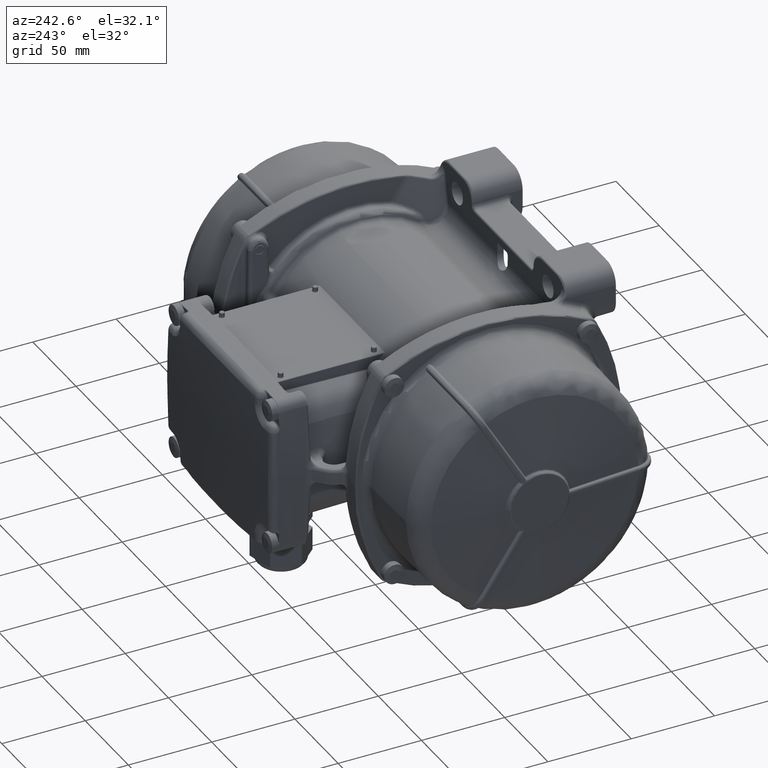
[diagram: clean part render]
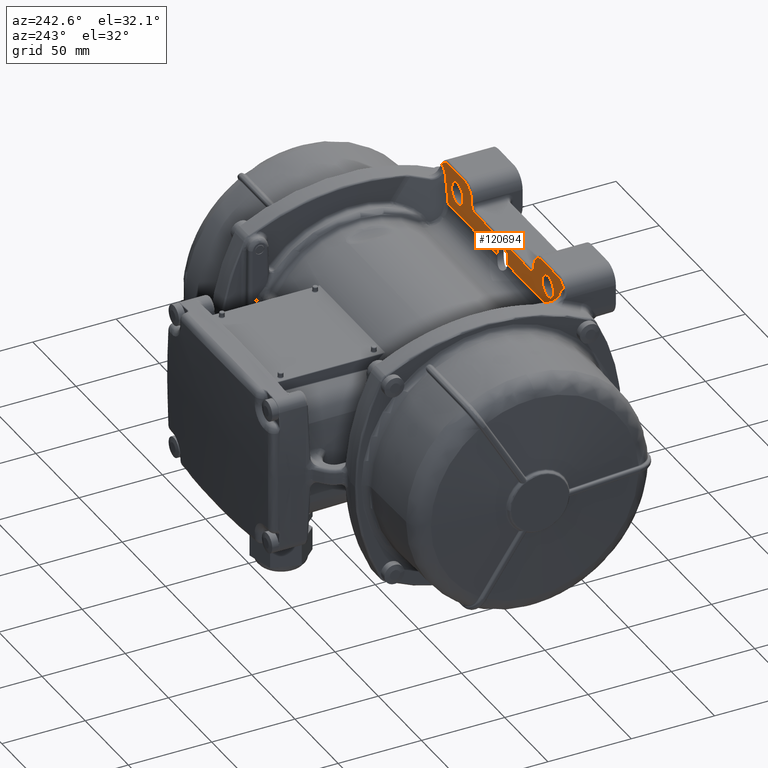
[diagram: same view with one face highlighted and labeled with its STEP entity id]
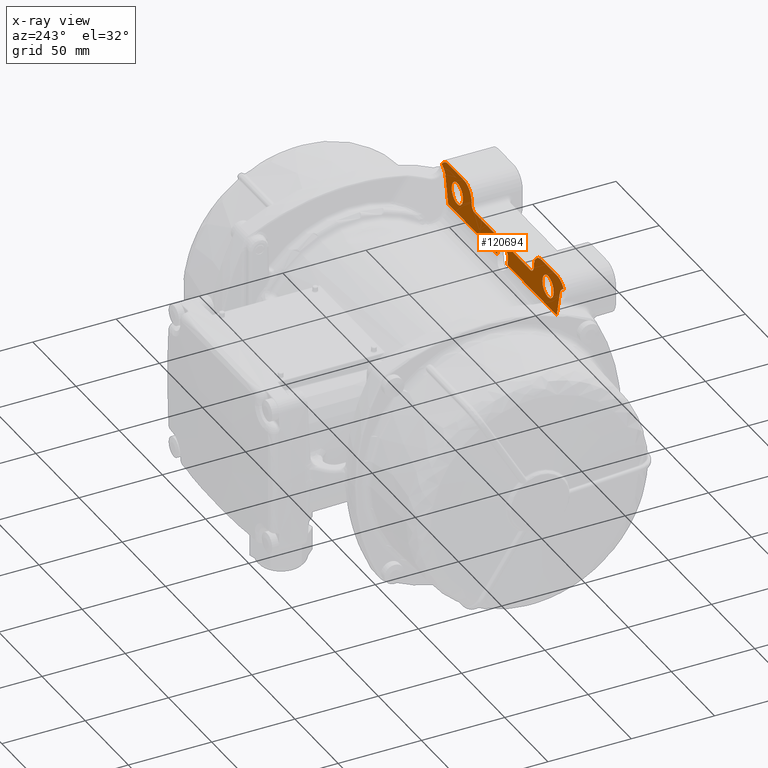
[diagram: x-ray of the same camera — body ghosted, the highlighted face saturated]
A machine part, auxiliary view. The second image highlights one B-rep face of the part: STEP entity #120694.
The next image is the same camera in x-ray: the body ghosted, the highlighted face saturated — about 0% of this face is hidden behind the body in this view.
In plain terms, the highlighted planar face has unit normal (-0, 1, 0.0087).
Its self-contained STEP definition (entity closure, byte-faithful):
#25 = CARTESIAN_POINT ( 'NONE',  ( -35.74219141796364596, -52.39611166357919814, 71.59557576535259216 ) ) ;
#185 = CARTESIAN_POINT ( 'NONE',  ( -67.51300437496439599, -52.43444178826660362, 75.98777301257689487 ) ) ;
#584 = EDGE_CURVE ( 'NONE', #59156, #31731, #58114, .T. ) ;
#629 = EDGE_CURVE ( 'NONE', #62556, #87078, #13330, .T. ) ;
#826 = CARTESIAN_POINT ( 'NONE',  ( 63.00000000000000000, -52.49134928753080231, 82.50872653549839697 ) ) ;
#1300 = CARTESIAN_POINT ( 'NONE',  ( -35.66955074502839551, -52.39450058240920072, 71.41096414883979548 ) ) ;
#1314 = CARTESIAN_POINT ( 'NONE',  ( 39.49999999999995737, -52.32546264418481741, 63.49999999999991473 ) ) ;
#1317 = CARTESIAN_POINT ( 'NONE',  ( 36.14362411237179629, -52.42678644906380470, 75.11055802703688755 ) ) ;
#1441 = CARTESIAN_POINT ( 'NONE',  ( -66.56352945394699816, -52.42177658957080411, 74.53648499040470199 ) ) ;
#1572 = LINE ( 'NONE', #21370, #115526 ) ;
#2072 = CARTESIAN_POINT ( 'NONE',  ( 69.17100087038689082, -52.44875122562469727, 77.62747212355070303 ) ) ;
#2399 = ORIENTED_EDGE ( 'NONE', *, *, #56720, .T. ) ;
#2410 = CARTESIAN_POINT ( 'NONE',  ( 65.50000000000001421, -52.43891192546470847, 76.49999999999994316 ) ) ;
#2493 = CARTESIAN_POINT ( 'NONE',  ( 36.00000000000000000, -52.40844404351869912, 73.00872653549839697 ) ) ;
#2556 = CARTESIAN_POINT ( 'NONE',  ( 39.62854222129885073, -52.47585305386430576, 80.73303403756560215 ) ) ;
#2620 = CARTESIAN_POINT ( 'NONE',  ( -90.00000000000000000, -52.45241372151829751, 78.04715258409379430 ) ) ;
#2703 = CARTESIAN_POINT ( 'NONE',  ( 67.58192563674660391, -52.43517875102779868, 76.07222058057030267 ) ) ;
#2948 = CARTESIAN_POINT ( 'NONE',  ( 68.32327232178720067, -52.47630801676520207, 80.78516762223588898 ) ) ;
#5014 = CARTESIAN_POINT ( 'NONE',  ( -69.50397608952809492, -52.46709727372950027, 79.72972101108770460 ) ) ;
#5635 = CARTESIAN_POINT ( 'NONE',  ( -67.13422589226860282, -52.48265987602319882, 81.51301860042420344 ) ) ;
#5817 = CARTESIAN_POINT ( 'NONE',  ( 35.66736229531954905, -52.39450414648650423, 71.41137255164460385 ) ) ;
#5920 = CARTESIAN_POINT ( 'NONE',  ( -6.000000000000008882, -52.33313076537709918, 64.37867965644041135 ) ) ;
#6078 = CARTESIAN_POINT ( 'NONE',  ( 73.00000000000000000, -52.33855294587100104, 65.00000000000000000 ) ) ;
#6461 = CARTESIAN_POINT ( 'NONE',  ( -35.86250208958059460, -52.39924217463660483, 71.95429680163280750 ) ) ;
#6842 = CARTESIAN_POINT ( 'NONE',  ( -42.65123068770429882, -52.48870291380980291, 82.20548214306620594 ) ) ;
#7062 = CARTESIAN_POINT ( 'NONE',  ( 33.26436218126595179, -52.37531731372749988, 69.21277928553570291 ) ) ;
#7466 = CARTESIAN_POINT ( 'NONE',  ( -36.16376625722099902, -52.42772556374910664, 75.21816991114479833 ) ) ;
#8321 = ORIENTED_EDGE ( 'NONE', *, *, #107964, .T. ) ;
#8570 = B_SPLINE_CURVE_WITH_KNOTS ( 'NONE', 3,
 ( #48539, #40190, #58821, #98011, #106368, #77476, #10286, #1317, #18601, #57523, #49192, #88336, #79360, #30662, #105751, #96717, #8979, #47926, #32538, #108920, #33147, #70984, #101196, #50451, #121102, #2556, #22350, #61958, #119828, #79986, #52939, #81866, #71607, #12780, #110798, #80623, #23633, #81246, #99290, #121729, #22986, #101824, #69722, #99923, #62610, #21105 ),
 .UNSPECIFIED., .F., .F.,
 ( 4, 1, 1, 1, 2, 2, 1, 1, 1, 2, 2, 1, 1, 2, 2, 2, 1, 1, 2, 2, 1, 1, 1, 2, 2, 1, 1, 1, 2, 2, 4 ),
 ( 0.000000000000000000, 0.06250000000004569956, 0.09375000000006999956, 0.1093750000000821981, 0.1171875000000869999, 0.1250000000000913991, 0.1875000000001225131, 0.2187500000001385003, 0.2343750000001444955, 0.2421875000001464939, 0.2500000000001479927, 0.3125000000001414979, 0.3437500000001380007, 0.3593750000001350031, 0.3750000000001315059, 0.5000000000001030287, 0.5625000000000880407, 0.5937500000000800471, 0.6093750000000780487, 0.6250000000000750511, 0.6875000000000609512, 0.7187500000000529576, 0.7343750000000489608, 0.7421875000000469624, 0.7500000000000459632, 0.8125000000000299760, 0.8437500000000229816, 0.8593750000000199840, 0.8671875000000179856, 0.8750000000000169864, 1.000000000000000000 ),
 .UNSPECIFIED. ) ;
#8733 = CARTESIAN_POINT ( 'NONE',  ( -36.00000000000000000, -52.41761468992400097, 74.05957852789680373 ) ) ;
#8827 = VECTOR ( 'NONE', #95307, 1000.000000000000114 ) ;
#8936 = B_SPLINE_CURVE_WITH_KNOTS ( 'NONE', 3,
 ( #103811, #16037, #94208, #6461, #70334, #21086, #25, #60672, #1300, #49173, #39530, #69707, #60053, #97352, #79970, #119164, #11516, #78722, #97996, #19843, #48523, #79342, #67783, #118545, #40170, #30645, #98623, #30021 ),
 .UNSPECIFIED., .F., .F.,
 ( 4, 1, 1, 1, 2, 2, 2, 2, 2, 1, 2, 2, 1, 1, 2, 2, 4 ),
 ( 0.000000000000000000, 0.1249999999999810013, 0.1874999999999679978, 0.2187499999999615030, 0.2343749999999620026, 0.2499999999999625022, 0.3124999999999669709, 0.3749999999999714673, 0.4999999999999729661, 0.5624999999999780176, 0.5937499999999790168, 0.6249999999999800160, 0.6874999999999830136, 0.7187499999999830136, 0.7343749999999830136, 0.7499999999999830136, 1.000000000000000000 ),
 .UNSPECIFIED. ) ;
#8979 = CARTESIAN_POINT ( 'NONE',  ( 36.93193603513039847, -52.44779082679600180, 77.51742131817809423 ) ) ;
#9057 = FACE_OUTER_BOUND ( 'NONE', #11469, .T. ) ;
#9297 = EDGE_CURVE ( 'NONE', #74327, #55427, #89322, .T. ) ;
#9422 = ORIENTED_EDGE ( 'NONE', *, *, #94746, .T. ) ;
#9778 = CARTESIAN_POINT ( 'NONE',  ( -67.53965655976689675, -52.43472886301799463, 76.02066852082219839 ) ) ;
#10286 = CARTESIAN_POINT ( 'NONE',  ( 36.13792635077714976, -52.42650821094759550, 75.07867509689289420 ) ) ;
#10706 = ORIENTED_EDGE ( 'NONE', *, *, #10849, .T. ) ;
#10849 = EDGE_CURVE ( 'NONE', #109206, #68739, #109591, .T. ) ;
#10946 = CARTESIAN_POINT ( 'NONE',  ( -90.00000000000000000, -52.45241372157460091, 78.04715259054739818 ) ) ;
#11066 = CARTESIAN_POINT ( 'NONE',  ( -68.23497762478530149, -52.44139680993029629, 76.78473955663730521 ) ) ;
#11077 = CARTESIAN_POINT ( 'NONE',  ( 68.59931145143309550, -52.44439647050750608, 77.12846661303110807 ) ) ;
#11330 = EDGE_CURVE ( 'NONE', #45137, #48163, #96190, .T. ) ;
#11469 = EDGE_LOOP ( 'NONE', ( #111977, #71639, #87580, #8321, #2399, #23181, #48962, #52365, #92902, #126263, #67524, #117303, #82454, #25935, #120791, #23824, #9422, #110651, #10706, #46489, #80227, #76010, #30725, #33579, #105143, #71362 ) ) ;
#11516 = CARTESIAN_POINT ( 'NONE',  ( -34.41473829760315084, -52.38060820441990018, 69.81905530795231130 ) ) ;
#11793 = CARTESIAN_POINT ( 'NONE',  ( -66.22881713375690538, -52.41207472889580288, 73.42476187191149961 ) ) ;
#12291 = CARTESIAN_POINT ( 'NONE',  ( -67.52897761058099491, -52.43461405109889739, 76.00751237799569537 ) ) ;
#12303 = CARTESIAN_POINT ( 'NONE',  ( 67.56835842336060693, -52.43503499546189772, 76.05574782433130565 ) ) ;
#12538 = CARTESIAN_POINT ( 'NONE',  ( 63.00000000000000000, -52.49134928753080231, 82.50872653549839697 ) ) ;
#12555 = CARTESIAN_POINT ( 'NONE',  ( 73.00000000000000000, -52.27461985331920147, 57.67399322588629929 ) ) ;
#12780 = CARTESIAN_POINT ( 'NONE',  ( 41.54616028714610110, -52.48533628981460453, 81.81970524395968880 ) ) ;
#13330 =( BOUNDED_CURVE ( )  B_SPLINE_CURVE ( 3, ( #69718, #50448, #110794, #21102 ),
 .UNSPECIFIED., .F., .F. ) 
 B_SPLINE_CURVE_WITH_KNOTS ( ( 4, 4 ),
 ( 0.000000000000000000, 3.141592653589795336 ),
 .UNSPECIFIED. ) 
 CURVE ( )  GEOMETRIC_REPRESENTATION_ITEM ( )  RATIONAL_B_SPLINE_CURVE ( ( 1.000000000000000000, 0.3333333333333335369, 0.3333333333333335369, 1.000000000000000000 ) ) 
 REPRESENTATION_ITEM ( '' )  );
#14159 = CARTESIAN_POINT ( 'NONE',  ( 35.52352459291344644, -52.39184679412279877, 71.10687013137140866 ) ) ;
#14190 = CARTESIAN_POINT ( 'NONE',  ( 66.42267834732039944, -52.41991503173639444, 74.32317159101958737 ) ) ;
#14783 = CARTESIAN_POINT ( 'NONE',  ( 34.63360700925499458, -52.38206145051620410, 69.98558081643260209 ) ) ;
#14807 = CARTESIAN_POINT ( 'NONE',  ( 66.22881717715910099, -52.41207472881409757, 73.42476186254670267 ) ) ;
#14944 = CARTESIAN_POINT ( 'NONE',  ( 5.997044128865260504, -52.27556819265799959, 57.78255508540340202 ) ) ;
#15974 = CARTESIAN_POINT ( 'NONE',  ( 36.00000000000000000, -52.41280747741399892, 73.50872653549839697 ) ) ;
#16030 = CARTESIAN_POINT ( 'NONE',  ( 36.00000000000000000, -52.40400170385370160, 72.49968482988050766 ) ) ;
#16037 = CARTESIAN_POINT ( 'NONE',  ( -36.00000000000000000, -52.40622607204169725, 72.75457217793119469 ) ) ;
#16477 = EDGE_CURVE ( 'NONE', #25173, #87387, #66704, .T. ) ;
#16615 = CARTESIAN_POINT ( 'NONE',  ( 4.500000000000000000, -52.33855294587100104, 65.00000000000000000 ) ) ;
#18356 = CARTESIAN_POINT ( 'NONE',  ( -36.68902129096849762, -52.44294867994909737, 76.96256624726159146 ) ) ;
#18601 = CARTESIAN_POINT ( 'NONE',  ( 36.20327225928320303, -52.42960107181369978, 75.43308184857410481 ) ) ;
#18905 = DIRECTION ( 'NONE',  ( 1.000000000000000000, 0.000000000000000000, 0.000000000000000000 ) ) ;
#19074 = EDGE_CURVE ( 'NONE', #19427, #56080, #33787, .T. ) ;
#19299 = DIRECTION ( 'NONE',  ( 1.000000000000000000, 0.000000000000000000, 0.000000000000000000 ) ) ;
#19427 = VERTEX_POINT ( 'NONE', #46183 ) ;
#19843 = CARTESIAN_POINT ( 'NONE',  ( -34.07602468233614701, -52.37858262320850145, 69.58694669121460663 ) ) ;
#20363 = VERTEX_POINT ( 'NONE', #83900 ) ;
#20634 = CARTESIAN_POINT ( 'NONE',  ( 67.67872767185910732, -52.43618598547129750, 76.18763821581710260 ) ) ;
#20645 = VECTOR ( 'NONE', #36715, 1000.000000000000227 ) ;
#20871 = CARTESIAN_POINT ( 'NONE',  ( 64.95175717671459381, -52.48948859469710015, 82.29551225538220649 ) ) ;
#20950 = EDGE_CURVE ( 'NONE', #80713, #90274, #102930, .T. ) ;
#21086 = CARTESIAN_POINT ( 'NONE',  ( -35.76413257388159650, -52.39663033040129392, 71.65500909637290761 ) ) ;
#21102 = CARTESIAN_POINT ( 'NONE',  ( -52.50000000000000000, -52.43891192546470137, 76.50000000000000000 ) ) ;
#21105 = CARTESIAN_POINT ( 'NONE',  ( 45.00000000000000000, -52.49134928753080231, 82.50872653549839697 ) ) ;
#21258 = CARTESIAN_POINT ( 'NONE',  ( 68.58438247941860766, -52.44427740431690665, 77.11482297896360194 ) ) ;
#21370 = CARTESIAN_POINT ( 'NONE',  ( 66.22881719162650427, -52.41207472878679852, 73.42476185942510369 ) ) ;
#21878 = CARTESIAN_POINT ( 'NONE',  ( 68.85425544990009428, -52.44638354309849859, 77.35616257894319858 ) ) ;
#22350 = CARTESIAN_POINT ( 'NONE',  ( 39.81801219909559819, -52.47702757707580190, 80.86762106691119811 ) ) ;
#22399 = CARTESIAN_POINT ( 'NONE',  ( 52.50000000000000000, -52.43891192546470137, 76.50000000000000000 ) ) ;
#22440 = VERTEX_POINT ( 'NONE', #38435 ) ;
#22523 = EDGE_CURVE ( 'NONE', #81490, #33100, #97725, .T. ) ;
#22986 = CARTESIAN_POINT ( 'NONE',  ( 43.21897199653029986, -52.48979664579810134, 82.33081141521660129 ) ) ;
#23181 = ORIENTED_EDGE ( 'NONE', *, *, #22523, .T. ) ;
#23383 = CARTESIAN_POINT ( 'NONE',  ( 65.18599882213280239, -52.48899841217650675, 82.23934290201829356 ) ) ;
#23530 = CARTESIAN_POINT ( 'NONE',  ( -43.83718246299655164, -52.49070733284920465, 82.43516581508390573 ) ) ;
#23633 = CARTESIAN_POINT ( 'NONE',  ( 41.95818393053240669, -52.48677146362960144, 81.98415987412609240 ) ) ;
#23824 = ORIENTED_EDGE ( 'NONE', *, *, #97067, .T. ) ;
#24010 = CARTESIAN_POINT ( 'NONE',  ( 70.77191668398809554, -52.45241372157460091, 78.04715259054739818 ) ) ;
#24354 = CARTESIAN_POINT ( 'NONE',  ( 33.72015918122835387, -52.37690672652909996, 69.39490795295870385 ) ) ;
#24943 = EDGE_CURVE ( 'NONE', #93215, #25173, #53175, .T. ) ;
#25130 = CARTESIAN_POINT ( 'NONE',  ( 5.991136752172499413, -52.27461985331920147, 57.67399322588629929 ) ) ;
#25173 = VERTEX_POINT ( 'NONE', #117369 ) ;
#25237 = VECTOR ( 'NONE', #70423, 1000.000000000000000 ) ;
#25709 = EDGE_CURVE ( 'NONE', #79936, #116979, #114523, .T. ) ;
#25935 = ORIENTED_EDGE ( 'NONE', *, *, #109659, .T. ) ;
#26020 = CARTESIAN_POINT ( 'NONE',  ( -44.31390111628629569, -52.49118538420780311, 82.48994507496699669 ) ) ;
#26060 = CARTESIAN_POINT ( 'NONE',  ( -65.47231466107410824, -52.48832911787740585, 82.16264937175260741 ) ) ;
#26239 = CARTESIAN_POINT ( 'NONE',  ( 32.62881748415659899, -52.37384293646260147, 69.04383238496720310 ) ) ;
#26270 = CARTESIAN_POINT ( 'NONE',  ( -52.50000000000000000, -52.32546264418489557, 63.50000000000000000 ) ) ;
#26876 = CARTESIAN_POINT ( 'NONE',  ( 33.44103295018509669, -52.37587926668140881, 69.27717271595490445 ) ) ;
#26965 = DIRECTION ( 'NONE',  ( 0.000000000000000000, 0.008726535498370600538, -0.9999619230641713097 ) ) ;
#27191 = CARTESIAN_POINT ( 'NONE',  ( -62.83007482337499283, -52.27461985331920147, 57.67399322588629929 ) ) ;
#27268 = CARTESIAN_POINT ( 'NONE',  ( -36.83995410223180045, -52.44598674896020185, 77.31069447425031171 ) ) ;
#27672 = CARTESIAN_POINT ( 'NONE',  ( -66.22881713375690538, -52.41207472889580288, 73.42476187191149961 ) ) ;
#28041 = CARTESIAN_POINT ( 'NONE',  ( -62.83007482342309657, -52.27461985331909489, 57.67399322587590405 ) ) ;
#28176 = LINE ( 'NONE', #79371, #107672 ) ;
#28373 = LINE ( 'NONE', #2620, #25237 ) ;
#28530 = CARTESIAN_POINT ( 'NONE',  ( -36.25521376075444380, -52.43145657224420120, 75.64570113822450992 ) ) ;
#29030 = CARTESIAN_POINT ( 'NONE',  ( -36.00000000000000000, -52.50000000000000000, 83.50000000000000000 ) ) ;
#29139 = CARTESIAN_POINT ( 'NONE',  ( -38.41659191650744276, -52.46643028589129898, 79.65329177505169866 ) ) ;
#30021 = CARTESIAN_POINT ( 'NONE',  ( -32.00000000000000000, -52.37353657235559723, 69.00872653549839697 ) ) ;
#30041 =( BOUNDED_CURVE ( )  B_SPLINE_CURVE ( 3, ( #74942, #53724, #114104, #26270 ),
 .UNSPECIFIED., .F., .F. ) 
 B_SPLINE_CURVE_WITH_KNOTS ( ( 4, 4 ),
 ( 3.141592653589795336, 6.283185307179590673 ),
 .UNSPECIFIED. ) 
 CURVE ( )  GEOMETRIC_REPRESENTATION_ITEM ( )  RATIONAL_B_SPLINE_CURVE ( ( 1.000000000000000000, 0.3333333333333335369, 0.3333333333333335369, 1.000000000000000000 ) ) 
 REPRESENTATION_ITEM ( '' )  );
#30190 = CARTESIAN_POINT ( 'NONE',  ( 68.37002813266148848, -52.44255993236959768, 76.91802018689529064 ) ) ;
#30645 = CARTESIAN_POINT ( 'NONE',  ( -32.99983465723275344, -52.37435354330759907, 69.10234213408190840 ) ) ;
#30662 = CARTESIAN_POINT ( 'NONE',  ( 36.60523556357129848, -52.44112500346459171, 76.75359362063140622 ) ) ;
#30725 = ORIENTED_EDGE ( 'NONE', *, *, #69783, .T. ) ;
#31731 = VERTEX_POINT ( 'NONE', #74337 ) ;
#32309 = CARTESIAN_POINT ( 'NONE',  ( 68.86008412919559873, -52.47246537700669933, 80.34484471937790317 ) ) ;
#32538 = CARTESIAN_POINT ( 'NONE',  ( 37.30473621667745476, -52.45354331167420270, 78.17659079526049482 ) ) ;
#33012 = CARTESIAN_POINT ( 'NONE',  ( 52.50000000000000000, -52.32546264418489557, 63.50000000000000000 ) ) ;
#33100 = VERTEX_POINT ( 'NONE', #73324 ) ;
#33147 = CARTESIAN_POINT ( 'NONE',  ( 37.42459604317075161, -52.45521961893160068, 78.36867658108820933 ) ) ;
#33533 = LINE ( 'NONE', #6078, #97551 ) ;
#33579 = ORIENTED_EDGE ( 'NONE', *, *, #24943, .T. ) ;
#33698 = CARTESIAN_POINT ( 'NONE',  ( -43.49782040334589794, -52.49024806207960125, 82.38253859755340613 ) ) ;
#33787 = LINE ( 'NONE', #63236, #96734 ) ;
#34360 = CARTESIAN_POINT ( 'NONE',  ( -64.53261775609250606, -52.49049563633830218, 82.41090779766729213 ) ) ;
#34532 = CARTESIAN_POINT ( 'NONE',  ( 35.27085493286170248, -52.38834152105519593, 70.70520562222060335 ) ) ;
#34848 = LINE ( 'NONE', #27191, #20645 ) ;
#35117 = CARTESIAN_POINT ( 'NONE',  ( -6.000000000000000000, -52.27651653199689719, 57.89127753479069582 ) ) ;
#35192 = B_SPLINE_CURVE_WITH_KNOTS ( 'NONE', 3,
 ( #59592, #89762, #2072, #21878, #100072, #51842, #11077, #21258, #49975, #69244, #30190, #91037, #108447, #20634, #40957, #2703, #12303, #90400, #79507, #122512, #14190, #14807 ),
 .UNSPECIFIED., .F., .F.,
 ( 4, 1, 1, 1, 1, 1, 2, 2, 1, 1, 1, 1, 1, 2, 2, 4 ),
 ( 0.000000000000000000, 0.1249999999998206018, 0.1874999999997259970, 0.2187499999996785072, 0.2343749999996604938, 0.2421874999996515010, 0.2460937499996495026, 0.2499999999996480038, 0.3749999999995459743, 0.4374999999994929611, 0.4687499999994639843, 0.4843749999994489963, 0.4921874999994419464, 0.4960937499994440003, 0.4999999999994449995, 1.000000000000000000 ),
 .UNSPECIFIED. ) ;
#35395 = DIRECTION ( 'NONE',  ( -1.000000000000000000, 0.000000000000000000, 0.000000000000000000 ) ) ;
#35590 = CARTESIAN_POINT ( 'NONE',  ( -66.59917956899629132, -52.48494533621570213, 81.77490639880520007 ) ) ;
#35766 = CARTESIAN_POINT ( 'NONE',  ( 35.70745125442674350, -52.39533704864429353, 71.50681368559159523 ) ) ;
#35872 = CARTESIAN_POINT ( 'NONE',  ( -6.000000000000000000, -52.32546264418489557, 63.50000000000000000 ) ) ;
#36175 = CARTESIAN_POINT ( 'NONE',  ( -40.52716846999135214, -52.48098610877870129, 81.32122387124370277 ) ) ;
#36373 = CARTESIAN_POINT ( 'NONE',  ( -5.997044128865260504, -52.27556819265799959, 57.78255508540340202 ) ) ;
#36387 = CARTESIAN_POINT ( 'NONE',  ( 33.05442973659035033, -52.37473649844140766, 69.14622444591779526 ) ) ;
#36641 = B_SPLINE_CURVE_WITH_KNOTS ( 'NONE', 3,
 ( #104433, #35117, #36373, #74890 ),
 .UNSPECIFIED., .F., .F.,
 ( 4, 4 ),
 ( 0.000000000000000000, 1.000000000000000000 ),
 .UNSPECIFIED. ) ;
#36715 = DIRECTION ( 'NONE',  ( -0.2109201995661595108, -0.008530217103958478639, 0.9774660632529043047 ) ) ;
#36833 = CARTESIAN_POINT ( 'NONE',  ( -69.40431130632069312, -52.46799219706839779, 79.83226906846199711 ) ) ;
#37241 = B_SPLINE_CURVE_WITH_KNOTS ( 'NONE', 3,
 ( #83687, #113890, #123550, #63187, #102389, #5014, #124851, #36833, #112003, #43923, #5635, #35590, #74719, #83066, #26060, #104265, #122306, #34360, #63807, #103005 ),
 .UNSPECIFIED., .F., .F.,
 ( 4, 1, 1, 1, 2, 2, 2, 1, 1, 1, 2, 2, 4 ),
 ( 0.000000000000000000, 0.1249999999999926031, 0.1874999999999899802, 0.2187499999999890088, 0.2343749999999900080, 0.2499999999999910072, 0.4999999999999649725, 0.6249999999999530376, 0.6874999999999450440, 0.7187499999999420464, 0.7343749999999430456, 0.7499999999999440448, 1.000000000000000000 ),
 .UNSPECIFIED. ) ;
#37418 = CARTESIAN_POINT ( 'NONE',  ( -36.19977270372755385, -52.42928566842740423, 75.39694020029939736 ) ) ;
#37909 = EDGE_CURVE ( 'NONE', #49177, #45137, #42298, .T. ) ;
#37972 = LINE ( 'NONE', #106046, #59326 ) ;
#38053 = CARTESIAN_POINT ( 'NONE',  ( -36.73296867453954917, -52.44386629843990022, 77.06771491145789810 ) ) ;
#38435 = CARTESIAN_POINT ( 'NONE',  ( -70.77191668398809554, -52.45241372157460091, 78.04715259054739818 ) ) ;
#38660 = CARTESIAN_POINT ( 'NONE',  ( -36.64532261916735223, -52.44201396446300123, 76.85545846146190740 ) ) ;
#39134 = EDGE_CURVE ( 'NONE', #87506, #109206, #80636, .T. ) ;
#39212 = VECTOR ( 'NONE', #26965, 1000.000000000000114 ) ;
#39530 = CARTESIAN_POINT ( 'NONE',  ( -35.49009486567814520, -52.39134829073950073, 71.04974730159548812 ) ) ;
#39697 = CARTESIAN_POINT ( 'NONE',  ( -68.52178524193880094, -52.44377876409090078, 77.05768446856799869 ) ) ;
#40170 = CARTESIAN_POINT ( 'NONE',  ( -33.50191284956114401, -52.37608960658059942, 69.30127528107169610 ) ) ;
#40190 = CARTESIAN_POINT ( 'NONE',  ( 36.00000000000000000, -52.41520806643909225, 73.78380679139019094 ) ) ;
#40329 = CARTESIAN_POINT ( 'NONE',  ( -67.69382509968130535, -52.43637638188609884, 76.20945548398489677 ) ) ;
#40453 = CARTESIAN_POINT ( 'NONE',  ( 69.69697793442439604, -52.45241045460070239, 78.04715261980310004 ) ) ;
#40944 = CARTESIAN_POINT ( 'NONE',  ( -68.55927083360769814, -52.44408062287169514, 77.09227405879299511 ) ) ;
#40957 = CARTESIAN_POINT ( 'NONE',  ( 67.61384411675359729, -52.43551431575029653, 76.11067248916239691 ) ) ;
#42298 =( BOUNDED_CURVE ( )  B_SPLINE_CURVE ( 3, ( #85848, #76936, #5920, #35872 ),
 .UNSPECIFIED., .F., .F. ) 
 B_SPLINE_CURVE_WITH_KNOTS ( ( 4, 4 ),
 ( -2.664535259100375303E-15, 1.570796326794895004 ),
 .UNSPECIFIED. ) 
 CURVE ( )  GEOMETRIC_REPRESENTATION_ITEM ( )  RATIONAL_B_SPLINE_CURVE ( ( 1.000000000000000000, 0.8047378541243639383, 0.8047378541243639383, 1.000000000000000000 ) ) 
 REPRESENTATION_ITEM ( '' )  );
#43087 = CARTESIAN_POINT ( 'NONE',  ( 65.23117249040758736, -52.48889869005009956, 82.22791587817130221 ) ) ;
#43192 = CARTESIAN_POINT ( 'NONE',  ( 73.00000000000000000, -52.27461985331920147, 57.67399322588830302 ) ) ;
#43923 = CARTESIAN_POINT ( 'NONE',  ( -68.17378555790440942, -52.47745049447620147, 80.91608260093829585 ) ) ;
#44361 = CARTESIAN_POINT ( 'NONE',  ( 70.38222410321810685, -52.45823748073380699, 78.71448929128379746 ) ) ;
#44541 = CARTESIAN_POINT ( 'NONE',  ( 36.00000000000000000, -52.27461985331920147, 57.67399322588629929 ) ) ;
#44712 = CARTESIAN_POINT ( 'NONE',  ( 36.00000000000000000, -52.40844404351869912, 73.00872653549839697 ) ) ;
#45137 = VERTEX_POINT ( 'NONE', #62455 ) ;
#45776 = CARTESIAN_POINT ( 'NONE',  ( -40.99130521350114975, -52.48321640494559404, 81.57679049839600793 ) ) ;
#45995 = CARTESIAN_POINT ( 'NONE',  ( 35.18967123170234856, -52.38737094169069763, 70.59398824299910302 ) ) ;
#46093 = CARTESIAN_POINT ( 'NONE',  ( -6.000000000000000000, -52.50000000000000000, 83.50000000000000000 ) ) ;
#46183 = CARTESIAN_POINT ( 'NONE',  ( -32.00000000000000000, -52.37353657235559723, 69.00872653549839697 ) ) ;
#46408 = CARTESIAN_POINT ( 'NONE',  ( -41.75513291432769591, -52.48606747678400808, 81.90349097177490023 ) ) ;
#46489 = ORIENTED_EDGE ( 'NONE', *, *, #66558, .T. ) ;
#46661 =( BOUNDED_CURVE ( )  B_SPLINE_CURVE ( 3, ( #33012, #101044, #2410, #63097 ),
 .UNSPECIFIED., .F., .F. ) 
 B_SPLINE_CURVE_WITH_KNOTS ( ( 4, 4 ),
 ( 0.000000000000000000, 3.141592653589795336 ),
 .UNSPECIFIED. ) 
 CURVE ( )  GEOMETRIC_REPRESENTATION_ITEM ( )  RATIONAL_B_SPLINE_CURVE ( ( 1.000000000000000000, 0.3333333333333335369, 0.3333333333333335369, 1.000000000000000000 ) ) 
 REPRESENTATION_ITEM ( '' )  );
#47283 = CARTESIAN_POINT ( 'NONE',  ( 39.49999999999995737, -52.43891192546470847, 76.49999999999994316 ) ) ;
#47667 = CARTESIAN_POINT ( 'NONE',  ( -41.82329376997439851, -52.48629464533009781, 81.92952190883229946 ) ) ;
#47893 = VECTOR ( 'NONE', #81113, 1000.000000000000000 ) ;
#47926 = CARTESIAN_POINT ( 'NONE',  ( 37.18750266277584871, -52.45184128680170232, 77.98155806264291812 ) ) ;
#48163 = VERTEX_POINT ( 'NONE', #65693 ) ;
#48294 = CARTESIAN_POINT ( 'NONE',  ( -37.77569249579909894, -52.45968347926950059, 78.88018431157500743 ) ) ;
#48523 = CARTESIAN_POINT ( 'NONE',  ( -33.90185641202104705, -52.37769471027510093, 69.48520194673560013 ) ) ;
#48539 = CARTESIAN_POINT ( 'NONE',  ( 36.00000000000000000, -52.41280747741399892, 73.50872653549839697 ) ) ;
#48962 = ORIENTED_EDGE ( 'NONE', *, *, #60142, .T. ) ;
#49173 = CARTESIAN_POINT ( 'NONE',  ( -35.61381858546985058, -52.39343244181530679, 71.28856736002649086 ) ) ;
#49177 = VERTEX_POINT ( 'NONE', #91316 ) ;
#49192 = CARTESIAN_POINT ( 'NONE',  ( 36.45565076701009843, -52.43754018763109315, 76.34281441331719975 ) ) ;
#49329 = CARTESIAN_POINT ( 'NONE',  ( -69.25423661371890205, -52.44938977394750168, 77.70064251390000720 ) ) ;
#49975 = CARTESIAN_POINT ( 'NONE',  ( 68.57446004670750028, -52.44419814202589691, 77.10574042004189721 ) ) ;
#50396 = CARTESIAN_POINT ( 'NONE',  ( -52.50000000000000000, -52.32546264418489557, 63.50000000000000000 ) ) ;
#50437 = EDGE_LOOP ( 'NONE', ( #56770, #53798 ) ) ;
#50448 = CARTESIAN_POINT ( 'NONE',  ( -39.49999999999995737, -52.32546264418481741, 63.49999999999991473 ) ) ;
#50451 = CARTESIAN_POINT ( 'NONE',  ( 38.85543475844714578, -52.47026000935709789, 80.09213461736550244 ) ) ;
#50888 = CARTESIAN_POINT ( 'NONE',  ( -52.50000000000000000, -52.43891192546470137, 76.50000000000000000 ) ) ;
#51198 = CARTESIAN_POINT ( 'NONE',  ( -68.87662837954300699, -52.44662512311790437, 77.38384490725329101 ) ) ;
#51439 = CARTESIAN_POINT ( 'NONE',  ( 65.09235957950630791, -52.48919848667470234, 82.26226916869738659 ) ) ;
#51842 = CARTESIAN_POINT ( 'NONE',  ( 68.63446298010219948, -52.44467550089940033, 77.16044032898308558 ) ) ;
#51972 = CARTESIAN_POINT ( 'NONE',  ( 4.500000000000000000, -52.33855294587100104, 65.00000000000000000 ) ) ;
#52365 = ORIENTED_EDGE ( 'NONE', *, *, #62671, .T. ) ;
#52624 = EDGE_CURVE ( 'NONE', #20363, #80713, #1572, .T. ) ;
#52939 = CARTESIAN_POINT ( 'NONE',  ( 40.72154221284944953, -52.48199678107099686, 81.43703544494289304 ) ) ;
#53059 = CARTESIAN_POINT ( 'NONE',  ( 35.62656087315635034, -52.39369560870260045, 71.31872329840480518 ) ) ;
#53175 = LINE ( 'NONE', #62202, #126913 ) ;
#53696 = CARTESIAN_POINT ( 'NONE',  ( 34.92583718249154856, -52.38461037565970457, 70.27765870791169789 ) ) ;
#53724 = CARTESIAN_POINT ( 'NONE',  ( -65.50000000000001421, -52.43891192546470847, 76.49999999999994316 ) ) ;
#53798 = ORIENTED_EDGE ( 'NONE', *, *, #629, .T. ) ;
#55427 = VERTEX_POINT ( 'NONE', #99865 ) ;
#55946 = EDGE_CURVE ( 'NONE', #88393, #55427, #77735, .T. ) ;
#56080 = VERTEX_POINT ( 'NONE', #75689 ) ;
#56163 = EDGE_CURVE ( 'NONE', #88393, #19427, #8936, .T. ) ;
#56321 = EDGE_LOOP ( 'NONE', ( #123153, #62386 ) ) ;
#56720 = EDGE_CURVE ( 'NONE', #58536, #81490, #34848, .T. ) ;
#56770 = ORIENTED_EDGE ( 'NONE', *, *, #110674, .T. ) ;
#57281 = CARTESIAN_POINT ( 'NONE',  ( -36.17791511992864883, -52.42835027332120745, 75.28975453774241089 ) ) ;
#57523 = CARTESIAN_POINT ( 'NONE',  ( 36.30324439133090664, -52.43330487663939721, 75.85749584389239430 ) ) ;
#58114 =( BOUNDED_CURVE ( )  B_SPLINE_CURVE ( 3, ( #67166, #47283, #1314, #106365 ),
 .UNSPECIFIED., .F., .F. ) 
 B_SPLINE_CURVE_WITH_KNOTS ( ( 4, 4 ),
 ( 3.141592653589795336, 6.283185307179590673 ),
 .UNSPECIFIED. ) 
 CURVE ( )  GEOMETRIC_REPRESENTATION_ITEM ( )  RATIONAL_B_SPLINE_CURVE ( ( 1.000000000000000000, 0.3333333333333335369, 0.3333333333333335369, 1.000000000000000000 ) ) 
 REPRESENTATION_ITEM ( '' )  );
#58255 = PLANE ( 'NONE',  #74346 ) ;
#58536 = VERTEX_POINT ( 'NONE', #28041 ) ;
#58566 = CARTESIAN_POINT ( 'NONE',  ( -37.50860574504220324, -52.45634100862329774, 78.49717511213060561 ) ) ;
#58821 = CARTESIAN_POINT ( 'NONE',  ( 36.01878146053140028, -52.41879497164670454, 74.19482541727279568 ) ) ;
#59156 = VERTEX_POINT ( 'NONE', #22399 ) ;
#59326 = VECTOR ( 'NONE', #18905, 1000.000000000000000 ) ;
#59592 = CARTESIAN_POINT ( 'NONE',  ( 69.69697793442439604, -52.45241045460070239, 78.04715261980310004 ) ) ;
#60053 = CARTESIAN_POINT ( 'NONE',  ( -35.19730824066875385, -52.38732997235909750, 70.58929362259600282 ) ) ;
#60142 = EDGE_CURVE ( 'NONE', #33100, #22440, #28373, .T. ) ;
#60203 = CARTESIAN_POINT ( 'NONE',  ( -68.47976610116531049, -52.44343794059560082, 77.01862996430959640 ) ) ;
#60672 = CARTESIAN_POINT ( 'NONE',  ( -35.73155381905505124, -52.39586833947190314, 71.56769358435370521 ) ) ;
#60835 = CARTESIAN_POINT ( 'NONE',  ( -67.26317929297128728, -52.43161714835940046, 75.66410133850219211 ) ) ;
#61332 = DIRECTION ( 'NONE',  ( -1.000000000000000000, 0.000000000000000000, 0.000000000000000000 ) ) ;
#61455 = CARTESIAN_POINT ( 'NONE',  ( -67.00297028439538849, -52.42836381441590277, 75.29130619350229381 ) ) ;
#61711 = CARTESIAN_POINT ( 'NONE',  ( 69.91459319246330040, -52.46353314198660200, 79.32131196578819754 ) ) ;
#61958 = CARTESIAN_POINT ( 'NONE',  ( 39.94560362716274682, -52.47779716737879596, 80.95580738088290218 ) ) ;
#62202 = CARTESIAN_POINT ( 'NONE',  ( 6.000000000000000000, -52.50000000000000000, 83.50000000000000000 ) ) ;
#62362 = CARTESIAN_POINT ( 'NONE',  ( 67.82731250630520492, -52.47918766695299553, 81.11514285009489811 ) ) ;
#62386 = ORIENTED_EDGE ( 'NONE', *, *, #106930, .T. ) ;
#62455 = CARTESIAN_POINT ( 'NONE',  ( -6.000000000000000000, -52.32546264418489557, 63.50000000000000000 ) ) ;
#62511 = CARTESIAN_POINT ( 'NONE',  ( -43.39816850874045429, -52.49009589889129757, 82.36510242320530040 ) ) ;
#62556 = VERTEX_POINT ( 'NONE', #50396 ) ;
#62610 = CARTESIAN_POINT ( 'NONE',  ( 44.44914800482010264, -52.49134928753080231, 82.50872653549839697 ) ) ;
#62671 = EDGE_CURVE ( 'NONE', #22440, #107412, #37241, .T. ) ;
#63097 = CARTESIAN_POINT ( 'NONE',  ( 52.50000000000000000, -52.43891192546470137, 76.50000000000000000 ) ) ;
#63187 = CARTESIAN_POINT ( 'NONE',  ( -69.82958169184509245, -52.46401007399489913, 79.37596296081439107 ) ) ;
#63236 = CARTESIAN_POINT ( 'NONE',  ( 73.00000000000000000, -52.37353657235559723, 69.00872653549839697 ) ) ;
#63371 = CARTESIAN_POINT ( 'NONE',  ( 34.41943292017030132, -52.38054155726730698, 69.81141830070529863 ) ) ;
#63485 = DIRECTION ( 'NONE',  ( 0.000000000000000000, -0.008726535498370600538, 0.9999619230641713097 ) ) ;
#63807 = CARTESIAN_POINT ( 'NONE',  ( -63.77278624745699886, -52.49134928753080231, 82.50872653549839697 ) ) ;
#63977 = CARTESIAN_POINT ( 'NONE',  ( 35.69381724706050107, -52.39504676915990444, 71.47355095131490543 ) ) ;
#65034 = CARTESIAN_POINT ( 'NONE',  ( -43.07564468469479380, -52.48957535739300084, 82.30545427558590177 ) ) ;
#65205 = CARTESIAN_POINT ( 'NONE',  ( 6.000000000000013323, -52.33313076537708497, 64.37867965644032608 ) ) ;
#65661 = CARTESIAN_POINT ( 'NONE',  ( -40.20297680969484588, -52.47926603024239256, 81.12412239364839195 ) ) ;
#65693 = CARTESIAN_POINT ( 'NONE',  ( -6.000000000000000000, -52.27746487133579478, 58.00000000000000000 ) ) ;
#66159 = EDGE_CURVE ( 'NONE', #107412, #74327, #37972, .T. ) ;
#66558 = EDGE_CURVE ( 'NONE', #68739, #20363, #35192, .T. ) ;
#66704 =( BOUNDED_CURVE ( )  B_SPLINE_CURVE ( 3, ( #94799, #65205, #102039, #16615 ),
 .UNSPECIFIED., .F., .T. ) 
 B_SPLINE_CURVE_WITH_KNOTS ( ( 4, 4 ),
 ( 4.712388980384689674, 6.283185307179580015 ),
 .UNSPECIFIED. ) 
 CURVE ( )  GEOMETRIC_REPRESENTATION_ITEM ( )  RATIONAL_B_SPLINE_CURVE ( ( 1.000000000000000000, 0.8047378541243649375, 0.8047378541243649375, 1.000000000000000000 ) ) 
 REPRESENTATION_ITEM ( '' )  );
#67166 = CARTESIAN_POINT ( 'NONE',  ( 52.50000000000000000, -52.43891192546470137, 76.50000000000000000 ) ) ;
#67524 = ORIENTED_EDGE ( 'NONE', *, *, #55946, .F. ) ;
#67783 = CARTESIAN_POINT ( 'NONE',  ( -33.59735398765990055, -52.37643945764400399, 69.34136424218010575 ) ) ;
#67868 = FACE_BOUND ( 'NONE', #56321, .T. ) ;
#68526 = CARTESIAN_POINT ( 'NONE',  ( 73.00000000000000000, -52.50000000000000000, 83.50000000000000000 ) ) ;
#68739 = VERTEX_POINT ( 'NONE', #40453 ) ;
#69244 = CARTESIAN_POINT ( 'NONE',  ( 68.57066277457809633, -52.44416777499310456, 77.10226070273978394 ) ) ;
#69707 = CARTESIAN_POINT ( 'NONE',  ( -35.42331894697765193, -52.39034851606880494, 70.93518447163880580 ) ) ;
#69718 = CARTESIAN_POINT ( 'NONE',  ( -52.50000000000000000, -52.32546264418489557, 63.50000000000000000 ) ) ;
#69722 = CARTESIAN_POINT ( 'NONE',  ( 43.32852463333524895, -52.48998342650600080, 82.35221436440380671 ) ) ;
#69783 = EDGE_CURVE ( 'NONE', #90274, #93215, #69915, .T. ) ;
#69853 = CARTESIAN_POINT ( 'NONE',  ( -67.47604980899458837, -52.43403952698229631, 75.94167843501189452 ) ) ;
#69915 = B_SPLINE_CURVE_WITH_KNOTS ( 'NONE', 3,
 ( #25130, #14944, #122653, #112962 ),
 .UNSPECIFIED., .F., .F.,
 ( 4, 4 ),
 ( 0.000000000000000000, 1.000000000000000000 ),
 .UNSPECIFIED. ) ;
#70193 = VECTOR ( 'NONE', #61332, 1000.000000000000000 ) ;
#70334 = CARTESIAN_POINT ( 'NONE',  ( -35.79594724996270116, -52.39741012193699987, 71.74436435582180138 ) ) ;
#70423 = DIRECTION ( 'NONE',  ( -1.000000000000000000, 0.000000000000000000, 0.000000000000000000 ) ) ;
#70984 = CARTESIAN_POINT ( 'NONE',  ( 37.80659524592490328, -52.46031994617369776, 78.95311619497958588 ) ) ;
#71362 = ORIENTED_EDGE ( 'NONE', *, *, #101538, .T. ) ;
#71380 = CARTESIAN_POINT ( 'NONE',  ( 69.33492587417730135, -52.46859867804219846, 79.90176490457750447 ) ) ;
#71607 = CARTESIAN_POINT ( 'NONE',  ( 41.44101162222830226, -52.48495276680510102, 81.77575786001149538 ) ) ;
#71639 = ORIENTED_EDGE ( 'NONE', *, *, #11330, .T. ) ;
#72648 = CARTESIAN_POINT ( 'NONE',  ( 63.38604007867459700, -52.49134928753080231, 82.50872653549839697 ) ) ;
#73324 = CARTESIAN_POINT ( 'NONE',  ( -69.69697797459519961, -52.45241351211260650, 78.04715258223168917 ) ) ;
#73345 = CARTESIAN_POINT ( 'NONE',  ( 45.00000000000000000, -52.49134928753080231, 82.50872653549839697 ) ) ;
#73636 = CARTESIAN_POINT ( 'NONE',  ( 35.90638440141660226, -52.39971861870059655, 72.00889188379800032 ) ) ;
#74327 = VERTEX_POINT ( 'NONE', #119569 ) ;
#74337 = CARTESIAN_POINT ( 'NONE',  ( 52.50000000000000000, -52.32546264418489557, 63.50000000000000000 ) ) ;
#74346 = AXIS2_PLACEMENT_3D ( 'NONE', #68526, #107718, #19299 ) ;
#74719 = CARTESIAN_POINT ( 'NONE',  ( -65.94824250021660816, -52.48705305292340029, 82.01642681119969325 ) ) ;
#74890 = CARTESIAN_POINT ( 'NONE',  ( -5.991136752172499413, -52.27461985331920147, 57.67399322588629929 ) ) ;
#74942 = CARTESIAN_POINT ( 'NONE',  ( -52.50000000000000000, -52.43891192546470137, 76.50000000000000000 ) ) ;
#75689 = CARTESIAN_POINT ( 'NONE',  ( 32.00000000000000000, -52.37353657235559723, 69.00872653549839697 ) ) ;
#75734 = VECTOR ( 'NONE', #98279, 1000.000000000000114 ) ;
#75966 = CARTESIAN_POINT ( 'NONE',  ( -41.72245746938220634, -52.48595668463700292, 81.89079544920970477 ) ) ;
#76010 = ORIENTED_EDGE ( 'NONE', *, *, #20950, .T. ) ;
#76936 = CARTESIAN_POINT ( 'NONE',  ( -5.378679656440358059, -52.33855294587107920, 65.00000000000005684 ) ) ;
#77165 = EDGE_CURVE ( 'NONE', #48163, #92056, #36641, .T. ) ;
#77225 = CARTESIAN_POINT ( 'NONE',  ( -36.52456666060620449, -52.43935300407290612, 76.55054260230609486 ) ) ;
#77476 = CARTESIAN_POINT ( 'NONE',  ( 36.12618793794505478, -52.42591680014749755, 75.01090613164188881 ) ) ;
#77735 = LINE ( 'NONE', #29030, #75734 ) ;
#78722 = CARTESIAN_POINT ( 'NONE',  ( -34.30352091652564894, -52.37989972497990010, 69.73787160528159745 ) ) ;
#79342 = CARTESIAN_POINT ( 'NONE',  ( -33.69000324301414651, -52.37679552627069768, 69.38216566545510489 ) ) ;
#79360 = CARTESIAN_POINT ( 'NONE',  ( 36.57920462637624581, -52.44053017268460337, 76.68543276449679524 ) ) ;
#79371 = CARTESIAN_POINT ( 'NONE',  ( 73.00000000000000000, -52.49134928753080231, 82.50872653549839697 ) ) ;
#79497 = CARTESIAN_POINT ( 'NONE',  ( -68.53990558341710937, -52.44392488962419918, 77.07442879617690323 ) ) ;
#79507 = CARTESIAN_POINT ( 'NONE',  ( 67.55572449623160480, -52.43490070068450137, 76.04035916707078968 ) ) ;
#79773 = DIRECTION ( 'NONE',  ( -1.000000000000000000, 0.000000000000000000, 0.000000000000000000 ) ) ;
#79936 = VERTEX_POINT ( 'NONE', #15974 ) ;
#79970 = CARTESIAN_POINT ( 'NONE',  ( -34.73106783129849617, -52.38291064927609852, 70.08288935602951142 ) ) ;
#79986 = CARTESIAN_POINT ( 'NONE',  ( 40.32935540182785417, -52.47999756103120461, 81.20794751926780464 ) ) ;
#80227 = ORIENTED_EDGE ( 'NONE', *, *, #52624, .T. ) ;
#80623 = CARTESIAN_POINT ( 'NONE',  ( 41.65326807436975542, -52.48571764235180837, 81.86340391642721670 ) ) ;
#80636 = B_SPLINE_CURVE_WITH_KNOTS ( 'NONE', 3,
 ( #12538, #72648, #118947, #91924, #20871, #51439, #23383, #43087, #90643, #120214, #62362, #2948, #32309, #100943, #82238, #109321, #71380, #61711, #44361, #24010 ),
 .UNSPECIFIED., .F., .F.,
 ( 4, 1, 1, 1, 2, 2, 2, 1, 1, 1, 2, 2, 4 ),
 ( 0.000000000000000000, 0.1250000000000000000, 0.1875000000000000000, 0.2187499999999950040, 0.2343749999999940048, 0.2499999999999925060, 0.4999999999999909517, 0.6249999999999890088, 0.6874999999999910072, 0.7187500000000000000, 0.7343750000000000000, 0.7500000000000000000, 1.000000000000000000 ),
 .UNSPECIFIED. ) ;
#80713 = VERTEX_POINT ( 'NONE', #120062 ) ;
#81113 = DIRECTION ( 'NONE',  ( -1.000000000000000000, 0.000000000000000000, 0.000000000000000000 ) ) ;
#81246 = CARTESIAN_POINT ( 'NONE',  ( 42.37085928226760245, -52.48799942706589405, 82.12487054669880138 ) ) ;
#81490 = VERTEX_POINT ( 'NONE', #11793 ) ;
#81757 = CARTESIAN_POINT ( 'NONE',  ( -42.16591211925509697, -52.48737288352119634, 82.05307576766250577 ) ) ;
#81866 = CARTESIAN_POINT ( 'NONE',  ( 41.19803205814095293, -52.48401911911609830, 81.66877243164221056 ) ) ;
#82238 = CARTESIAN_POINT ( 'NONE',  ( 69.22635000094490465, -52.46952223966010109, 80.00759458367839727 ) ) ;
#82382 = CARTESIAN_POINT ( 'NONE',  ( -44.72491974299995121, -52.49134928753080231, 82.50872653549839697 ) ) ;
#82454 = ORIENTED_EDGE ( 'NONE', *, *, #19074, .T. ) ;
#83066 = CARTESIAN_POINT ( 'NONE',  ( -65.61609487625290171, -52.48796724789809787, 82.12118317930108446 ) ) ;
#83687 = CARTESIAN_POINT ( 'NONE',  ( -70.77191668398809554, -52.45241372157460091, 78.04715259054739818 ) ) ;
#83900 = CARTESIAN_POINT ( 'NONE',  ( 66.22881717715910099, -52.41207472881409757, 73.42476186254670267 ) ) ;
#84479 = CARTESIAN_POINT ( 'NONE',  ( 33.41315077064844985, -52.37578643376640031, 69.26653511753470127 ) ) ;
#84892 = CARTESIAN_POINT ( 'NONE',  ( -37.64110546721569506, -52.45802999983110482, 78.69071433471580690 ) ) ;
#85515 = CARTESIAN_POINT ( 'NONE',  ( -36.15651217109470394, -52.42739422195590038, 75.18020190233768574 ) ) ;
#85848 = CARTESIAN_POINT ( 'NONE',  ( -4.500000000000000000, -52.33855294587100104, 65.00000000000000000 ) ) ;
#86149 = CARTESIAN_POINT ( 'NONE',  ( -39.55561033658590020, -52.47558336964050341, 80.70213128639210254 ) ) ;
#86428 = VECTOR ( 'NONE', #79773, 1000.000000000000000 ) ;
#87078 = VERTEX_POINT ( 'NONE', #50888 ) ;
#87387 = VERTEX_POINT ( 'NONE', #51972 ) ;
#87506 = VERTEX_POINT ( 'NONE', #826 ) ;
#87580 = ORIENTED_EDGE ( 'NONE', *, *, #77165, .T. ) ;
#87973 = DIRECTION ( 'NONE',  ( -0.2109202031580264813, 0.008530217097195237630, -0.9774660624779009099 ) ) ;
#88033 = B_SPLINE_CURVE_WITH_KNOTS ( 'NONE', 3,
 ( #101940, #112186, #26239, #36387, #7062, #93552, #84479, #26876, #92921, #24354, #123104, #123748, #63371, #14783, #53696, #122489, #45995, #34532, #114703, #103195, #14159, #53059, #5817, #63977, #35766, #73636, #16030, #44712 ),
 .UNSPECIFIED., .F., .F.,
 ( 4, 1, 1, 1, 2, 2, 2, 2, 2, 1, 2, 2, 1, 1, 2, 2, 4 ),
 ( 0.000000000000000000, 0.1249999999999980016, 0.1874999999999975020, 0.2187499999999960032, 0.2343749999999975020, 0.2500000000000000000, 0.3125000000000074940, 0.3750000000000154876, 0.5000000000000289768, 0.5625000000000319744, 0.5937500000000329736, 0.6250000000000329736, 0.6875000000000359712, 0.7187500000000389688, 0.7343750000000369704, 0.7500000000000349720, 1.000000000000000000 ),
 .UNSPECIFIED. ) ;
#88336 = CARTESIAN_POINT ( 'NONE',  ( 36.54079701025549554, -52.43963639446750591, 76.58301592508469469 ) ) ;
#88393 = VERTEX_POINT ( 'NONE', #100071 ) ;
#89124 = CARTESIAN_POINT ( 'NONE',  ( -67.40340594559721410, -52.43323374571129847, 75.84934504686489731 ) ) ;
#89322 = B_SPLINE_CURVE_WITH_KNOTS ( 'NONE', 3,
 ( #113842, #82382, #26020, #23530, #121627, #33698, #94613, #62511, #65034, #6842, #81757, #111957, #47667, #46408, #75966, #126088, #45776, #36175, #106750, #65661, #106117, #86149, #115112, #29139, #105501, #48294, #84892, #97750, #58566, #125436, #116401, #27268, #38053, #18356, #124156, #38660, #77225, #107396, #28530, #37418, #57281, #7466, #85515, #96481, #8733, #124811 ),
 .UNSPECIFIED., .F., .F.,
 ( 4, 1, 1, 1, 2, 2, 1, 1, 1, 2, 2, 1, 1, 2, 2, 2, 1, 1, 2, 2, 1, 1, 1, 2, 2, 1, 1, 1, 2, 2, 4 ),
 ( 0.000000000000000000, 0.06250000000001310063, 0.09375000000001959544, 0.1093750000000226069, 0.1171875000000239947, 0.1250000000000252021, 0.1875000000000335010, 0.2187500000000379974, 0.2343750000000404954, 0.2421875000000414946, 0.2500000000000425215, 0.3125000000000465183, 0.3437500000000470179, 0.3593750000000470179, 0.3750000000000465183, 0.5000000000000269784, 0.5625000000000169864, 0.5937500000000129896, 0.6093750000000089928, 0.6250000000000000000, 0.6875000000000000000, 0.7187499999999870104, 0.7343749999999860112, 0.7421874999999840128, 0.7499999999999830136, 0.8124999999999790168, 0.8437499999999780176, 0.8593749999999780176, 0.8671874999999780176, 0.8749999999999780176, 1.000000000000000000 ),
 .UNSPECIFIED. ) ;
#89762 = CARTESIAN_POINT ( 'NONE',  ( 69.47730496905829511, -52.45091334311180020, 77.87522624781749414 ) ) ;
#90274 = VERTEX_POINT ( 'NONE', #113321 ) ;
#90389 = CARTESIAN_POINT ( 'NONE',  ( -68.55201073068920437, -52.44402231960659577, 77.08559316634431013 ) ) ;
#90400 = CARTESIAN_POINT ( 'NONE',  ( 67.55933853336729555, -52.43493917128170523, 76.04476746087360084 ) ) ;
#90643 = CARTESIAN_POINT ( 'NONE',  ( 66.05264709389790312, -52.48702263640449672, 82.01294142334738524 ) ) ;
#91037 = CARTESIAN_POINT ( 'NONE',  ( 68.09733366505270169, -52.44023113151830273, 76.65116604092091279 ) ) ;
#91316 = CARTESIAN_POINT ( 'NONE',  ( -4.500000000000000000, -52.33855294587100104, 65.00000000000000000 ) ) ;
#91924 = CARTESIAN_POINT ( 'NONE',  ( 64.62268013156909774, -52.49009548734179731, 82.36505526430899238 ) ) ;
#91941 = LINE ( 'NONE', #12555, #86428 ) ;
#92056 = VERTEX_POINT ( 'NONE', #121401 ) ;
#92902 = ORIENTED_EDGE ( 'NONE', *, *, #66159, .T. ) ;
#92921 = CARTESIAN_POINT ( 'NONE',  ( 33.59776239049615043, -52.37642035933239981, 69.33917579242330476 ) ) ;
#93215 = VERTEX_POINT ( 'NONE', #111583 ) ;
#93552 = CARTESIAN_POINT ( 'NONE',  ( 33.35371744008229911, -52.37559495619950667, 69.24459396161670099 ) ) ;
#94208 = CARTESIAN_POINT ( 'NONE',  ( -35.96489415053119387, -52.40295643650159718, 72.37990905497480298 ) ) ;
#94613 = CARTESIAN_POINT ( 'NONE',  ( -43.43005143833735104, -52.49014562250270188, 82.37080018472130405 ) ) ;
#94746 = EDGE_CURVE ( 'NONE', #122711, #87506, #28176, .T. ) ;
#94799 = CARTESIAN_POINT ( 'NONE',  ( 6.000000000000000000, -52.32546264418489557, 63.50000000000000000 ) ) ;
#95307 = DIRECTION ( 'NONE',  ( 0.000000000000000000, 0.008726535498370600538, -0.9999619230641713097 ) ) ;
#96190 = LINE ( 'NONE', #46093, #39212 ) ;
#96481 = CARTESIAN_POINT ( 'NONE',  ( -36.05008389475030128, -52.42237859242759868, 74.60546768513330562 ) ) ;
#96717 = CARTESIAN_POINT ( 'NONE',  ( 36.74369892250560810, -52.44418345769939549, 77.10405776288200741 ) ) ;
#96734 = VECTOR ( 'NONE', #102436, 1000.000000000000000 ) ;
#97067 = EDGE_CURVE ( 'NONE', #79936, #122711, #8570, .T. ) ;
#97352 = CARTESIAN_POINT ( 'NONE',  ( -35.02314571164190227, -52.38546090328329541, 70.37511952019789874 ) ) ;
#97551 = VECTOR ( 'NONE', #35395, 1000.000000000000000 ) ;
#97725 = B_SPLINE_CURVE_WITH_KNOTS ( 'NONE', 3,
 ( #27672, #98157, #1441, #61455, #60835, #89124, #69853, #185, #12291, #9778, #98786, #40329, #119318, #11066, #119969, #60203, #39697, #79497, #90389, #40944, #51198, #49329, #109055 ),
 .UNSPECIFIED., .F., .F.,
 ( 4, 1, 1, 1, 1, 1, 1, 2, 2, 1, 1, 1, 1, 1, 2, 2, 4 ),
 ( 0.000000000000000000, 0.2500000000000460187, 0.3750000000000690004, 0.4375000000000774936, 0.4687500000000849876, 0.4843750000000879852, 0.4921875000000879852, 0.4960937500000899836, 0.5000000000000920375, 0.6250000000001320055, 0.6875000000001519895, 0.7187500000001599831, 0.7343750000001659783, 0.7421875000001689759, 0.7460937500001689759, 0.7500000000001679767, 1.000000000000000000 ),
 .UNSPECIFIED. ) ;
#97750 = CARTESIAN_POINT ( 'NONE',  ( -37.55291915385380008, -52.45691652631369806, 78.56312290739870718 ) ) ;
#97996 = CARTESIAN_POINT ( 'NONE',  ( -34.24524617914305225, -52.37954865866650067, 69.69764339032860789 ) ) ;
#98011 = CARTESIAN_POINT ( 'NONE',  ( 36.07356072041450545, -52.42295523231150156, 74.67154407104740699 ) ) ;
#98092 = CARTESIAN_POINT ( 'NONE',  ( -63.00000000000000000, -52.49134928753080231, 82.50872653549839697 ) ) ;
#98157 = CARTESIAN_POINT ( 'NONE',  ( -66.32568391934000829, -52.41599229920390002, 73.87367096529638388 ) ) ;
#98279 = DIRECTION ( 'NONE',  ( 0.000000000000000000, -0.008726535498370600538, 0.9999619230641713097 ) ) ;
#98623 = CARTESIAN_POINT ( 'NONE',  ( -32.50904171115019636, -52.37353657235569671, 69.00872653549839697 ) ) ;
#98654 = DIRECTION ( 'NONE',  ( 1.000000000000000000, 0.000000000000000000, 0.000000000000000000 ) ) ;
#98786 = CARTESIAN_POINT ( 'NONE',  ( -67.54589805953479242, -52.43479573148639616, 76.02833088835960496 ) ) ;
#99290 = CARTESIAN_POINT ( 'NONE',  ( 42.86302539378250742, -52.48912207077349734, 82.25351277373819414 ) ) ;
#99865 = CARTESIAN_POINT ( 'NONE',  ( -36.00000000000000000, -52.41280747741399892, 73.50872653549839697 ) ) ;
#99923 = CARTESIAN_POINT ( 'NONE',  ( 43.90325884758374997, -52.49091221200290391, 82.45864264074810990 ) ) ;
#100071 = CARTESIAN_POINT ( 'NONE',  ( -36.00000000000000000, -52.40844404351869912, 73.00872653549839697 ) ) ;
#100072 = CARTESIAN_POINT ( 'NONE',  ( 68.70603507998079351, -52.44523839880429961, 77.22494204006551399 ) ) ;
#100943 = CARTESIAN_POINT ( 'NONE',  ( 69.11803803856960826, -52.47042329515929282, 80.11084531702660172 ) ) ;
#101044 = CARTESIAN_POINT ( 'NONE',  ( 65.50000000000001421, -52.32546264418481741, 63.49999999999991473 ) ) ;
#101196 = CARTESIAN_POINT ( 'NONE',  ( 38.19724739106970191, -52.46451475314869839, 79.43379346380179129 ) ) ;
#101538 = EDGE_CURVE ( 'NONE', #87387, #49177, #33533, .T. ) ;
#101824 = CARTESIAN_POINT ( 'NONE',  ( 43.29055662370984692, -52.48992012105379246, 82.34496027809188945 ) ) ;
#101940 = CARTESIAN_POINT ( 'NONE',  ( 32.00000000000000000, -52.37353657235559723, 69.00872653549839697 ) ) ;
#102039 = CARTESIAN_POINT ( 'NONE',  ( 5.378679656440362500, -52.33855294587101525, 64.99999999999997158 ) ) ;
#102389 = CARTESIAN_POINT ( 'NONE',  ( -69.60358454621849944, -52.46618397901879405, 79.62506780301620779 ) ) ;
#102436 = DIRECTION ( 'NONE',  ( 1.000000000000000000, 0.000000000000000000, 0.000000000000000000 ) ) ;
#102930 = LINE ( 'NONE', #43192, #47893 ) ;
#103005 = CARTESIAN_POINT ( 'NONE',  ( -63.00000000000000000, -52.49134928753080231, 82.50872653549839697 ) ) ;
#103195 = CARTESIAN_POINT ( 'NONE',  ( 35.42177984665569568, -52.39032685062489492, 70.93270185767309499 ) ) ;
#103811 = CARTESIAN_POINT ( 'NONE',  ( -36.00000000000000000, -52.40844404351869912, 73.00872653549839697 ) ) ;
#104265 = CARTESIAN_POINT ( 'NONE',  ( -65.37614313240371189, -52.48856371389319975, 82.18953141252519856 ) ) ;
#104433 = CARTESIAN_POINT ( 'NONE',  ( -6.000000000000000000, -52.27746487133579478, 58.00000000000000000 ) ) ;
#105143 = ORIENTED_EDGE ( 'NONE', *, *, #16477, .T. ) ;
#105501 = CARTESIAN_POINT ( 'NONE',  ( -38.10588180561089899, -52.46342448209460230, 79.30886077543070201 ) ) ;
#105751 = CARTESIAN_POINT ( 'NONE',  ( 36.61793108642979888, -52.44141015775970516, 76.78626906638970695 ) ) ;
#106046 = CARTESIAN_POINT ( 'NONE',  ( 73.00000000000000000, -52.49134928753080231, 82.50872653549839697 ) ) ;
#106117 = CARTESIAN_POINT ( 'NONE',  ( -40.14004995490265060, -52.47891702621029708, 81.08413049272589035 ) ) ;
#106365 = CARTESIAN_POINT ( 'NONE',  ( 52.50000000000000000, -52.32546264418489557, 63.50000000000000000 ) ) ;
#106368 = CARTESIAN_POINT ( 'NONE',  ( 36.10916723933849681, -52.42502924712469792, 74.90920262882940506 ) ) ;
#106750 = CARTESIAN_POINT ( 'NONE',  ( -40.33213573839690014, -52.47996302705779925, 81.20399031787049182 ) ) ;
#106930 = EDGE_CURVE ( 'NONE', #31731, #59156, #46661, .T. ) ;
#107396 = CARTESIAN_POINT ( 'NONE',  ( -36.38385598745869487, -52.43575164082029261, 76.13786724857538957 ) ) ;
#107412 = VERTEX_POINT ( 'NONE', #98092 ) ;
#107672 = VECTOR ( 'NONE', #98654, 1000.000000000000000 ) ;
#107718 = DIRECTION ( 'NONE',  ( -0.000000000000000000, 0.9999619230641713097, 0.008726535498370600538 ) ) ;
#107964 = EDGE_CURVE ( 'NONE', #92056, #58536, #91941, .T. ) ;
#108447 = CARTESIAN_POINT ( 'NONE',  ( 67.81268116243579414, -52.43753148601620495, 76.34181730700869650 ) ) ;
#108920 = CARTESIAN_POINT ( 'NONE',  ( 37.38460414132214993, -52.45467046457610394, 78.30574972478109430 ) ) ;
#109055 = CARTESIAN_POINT ( 'NONE',  ( -69.69697797459519961, -52.45241351211260650, 78.04715258223168917 ) ) ;
#109206 = VERTEX_POINT ( 'NONE', #110453 ) ;
#109321 = CARTESIAN_POINT ( 'NONE',  ( 69.29806026184600398, -52.46891578542400225, 79.93810181140240445 ) ) ;
#109591 = LINE ( 'NONE', #10946, #70193 ) ;
#109659 = EDGE_CURVE ( 'NONE', #56080, #116979, #88033, .T. ) ;
#110453 = CARTESIAN_POINT ( 'NONE',  ( 70.77191668398809554, -52.45241372157460091, 78.04715259054739818 ) ) ;
#110651 = ORIENTED_EDGE ( 'NONE', *, *, #39134, .T. ) ;
#110674 = EDGE_CURVE ( 'NONE', #87078, #62556, #30041, .T. ) ;
#110794 = CARTESIAN_POINT ( 'NONE',  ( -39.49999999999995737, -52.43891192546470847, 76.49999999999994316 ) ) ;
#110798 = CARTESIAN_POINT ( 'NONE',  ( 41.61648485620754911, -52.48558828032879831, 81.84858049683079173 ) ) ;
#111583 = CARTESIAN_POINT ( 'NONE',  ( 6.000000000000000000, -52.27746487133579478, 58.00000000000000000 ) ) ;
#111957 = CARTESIAN_POINT ( 'NONE',  ( -41.92571060870714916, -52.48662982351649475, 81.96792952476118899 ) ) ;
#111977 = ORIENTED_EDGE ( 'NONE', *, *, #37909, .T. ) ;
#112003 = CARTESIAN_POINT ( 'NONE',  ( -68.80442627816920265, -52.47323683756719959, 80.43324534363520684 ) ) ;
#112186 = CARTESIAN_POINT ( 'NONE',  ( 32.25415435964324473, -52.37353657235559723, 69.00872653549839697 ) ) ;
#112962 = CARTESIAN_POINT ( 'NONE',  ( 6.000000000000000000, -52.27746487133579478, 58.00000000000000000 ) ) ;
#113321 = CARTESIAN_POINT ( 'NONE',  ( 5.991136752172499413, -52.27461985331920147, 57.67399322588629929 ) ) ;
#113842 = CARTESIAN_POINT ( 'NONE',  ( -45.00000000000000000, -52.49134928753080231, 82.50872653549839697 ) ) ;
#113890 = CARTESIAN_POINT ( 'NONE',  ( -70.57724842343809257, -52.45532294058799749, 78.38051607023399470 ) ) ;
#114104 = CARTESIAN_POINT ( 'NONE',  ( -65.50000000000001421, -52.32546264418481741, 63.49999999999991473 ) ) ;
#114523 = LINE ( 'NONE', #44541, #8827 ) ;
#114703 = CARTESIAN_POINT ( 'NONE',  ( 35.31108314398395009, -52.38885007693590268, 70.76348035409991155 ) ) ;
#115112 = CARTESIAN_POINT ( 'NONE',  ( -39.07493307494934953, -52.47217420008029620, 80.31147914842959779 ) ) ;
#115526 = VECTOR ( 'NONE', #87973, 999.9999999999998863 ) ;
#116401 = CARTESIAN_POINT ( 'NONE',  ( -37.07169108838959914, -52.45014501283459651, 77.78718431850579407 ) ) ;
#116979 = VERTEX_POINT ( 'NONE', #2493 ) ;
#117303 = ORIENTED_EDGE ( 'NONE', *, *, #56163, .T. ) ;
#117369 = CARTESIAN_POINT ( 'NONE',  ( 6.000000000000000000, -52.32546264418489557, 63.50000000000000000 ) ) ;
#118545 = CARTESIAN_POINT ( 'NONE',  ( -33.53517558629810225, -52.37620858876999819, 69.31490928954978870 ) ) ;
#118947 = CARTESIAN_POINT ( 'NONE',  ( 63.96050695341901360, -52.49102916833360410, 82.47204450881169180 ) ) ;
#119164 = CARTESIAN_POINT ( 'NONE',  ( -34.57809984731195385, -52.38170632488709799, 69.94488744997130425 ) ) ;
#119318 = CARTESIAN_POINT ( 'NONE',  ( -67.92812997164058686, -52.43868546319389878, 76.47404999408199444 ) ) ;
#119569 = CARTESIAN_POINT ( 'NONE',  ( -45.00000000000000000, -52.49134928753080231, 82.50872653549839697 ) ) ;
#119828 = CARTESIAN_POINT ( 'NONE',  ( 40.01155142396044795, -52.47818388464820316, 81.00012079076610405 ) ) ;
#119969 = CARTESIAN_POINT ( 'NONE',  ( -68.39677444365560177, -52.44275683793449616, 76.94058332977550663 ) ) ;
#120062 = CARTESIAN_POINT ( 'NONE',  ( 62.83007482336029881, -52.27461985331920147, 57.67399322588950383 ) ) ;
#120214 = CARTESIAN_POINT ( 'NONE',  ( 66.78761232983170260, -52.48439491261670042, 81.71183410159669336 ) ) ;
#120694 = ADVANCED_FACE ( 'NONE', ( #67868, #126401, #9057 ), #58255, .T. ) ;
#120791 = ORIENTED_EDGE ( 'NONE', *, *, #25709, .F. ) ;
#121102 = CARTESIAN_POINT ( 'NONE',  ( 39.19986575656805172, -52.47297153540549886, 80.40284472704249197 ) ) ;
#121401 = CARTESIAN_POINT ( 'NONE',  ( -5.991136752172499413, -52.27461985331920147, 57.67399322588629929 ) ) ;
#121627 = CARTESIAN_POINT ( 'NONE',  ( -43.59952390582074599, -52.49039659946600267, 82.39955929615999253 ) ) ;
#121729 = CARTESIAN_POINT ( 'NONE',  ( 43.11178633316255571, -52.48960589755209583, 82.30895383118419772 ) ) ;
#122306 = CARTESIAN_POINT ( 'NONE',  ( -65.32617432401998769, -52.48868162755429978, 82.20304297977638441 ) ) ;
#122489 = CARTESIAN_POINT ( 'NONE',  ( 35.06383909081674943, -52.38594530705650243, 70.43062669468230297 ) ) ;
#122512 = CARTESIAN_POINT ( 'NONE',  ( 66.86319129070160727, -52.42750457760649851, 75.19284740736739536 ) ) ;
#122653 = CARTESIAN_POINT ( 'NONE',  ( 6.000000000000000000, -52.27651653199689719, 57.89127753479059635 ) ) ;
#122711 = VERTEX_POINT ( 'NONE', #73345 ) ;
#123104 = CARTESIAN_POINT ( 'NONE',  ( 33.95897923965940635, -52.37798644707429929, 69.51863167275031685 ) ) ;
#123153 = ORIENTED_EDGE ( 'NONE', *, *, #584, .T. ) ;
#123550 = CARTESIAN_POINT ( 'NONE',  ( -70.25588563649259299, -52.45949072781800027, 78.85809718293809567 ) ) ;
#123748 = CARTESIAN_POINT ( 'NONE',  ( 34.07354206022539955, -52.37856919163710501, 69.58540758558289951 ) ) ;
#124156 = CARTESIAN_POINT ( 'NONE',  ( -36.66014603836814700, -52.44233496673690098, 76.89224167871809357 ) ) ;
#124811 = CARTESIAN_POINT ( 'NONE',  ( -36.00000000000000000, -52.41280747741399892, 73.50872653549839697 ) ) ;
#124851 = CARTESIAN_POINT ( 'NONE',  ( -69.43695877681518880, -52.46770205267639398, 79.79902181424320418 ) ) ;
#125436 = CARTESIAN_POINT ( 'NONE',  ( -37.30077901499324611, -52.45356757529919633, 78.17937113130341231 ) ) ;
#126088 = CARTESIAN_POINT ( 'NONE',  ( -41.40466877043424887, -52.48485912534820841, 81.76502761186610257 ) ) ;
#126263 = ORIENTED_EDGE ( 'NONE', *, *, #9297, .T. ) ;
#126401 = FACE_BOUND ( 'NONE', #50437, .T. ) ;
#126913 = VECTOR ( 'NONE', #63485, 1000.000000000000114 ) ;